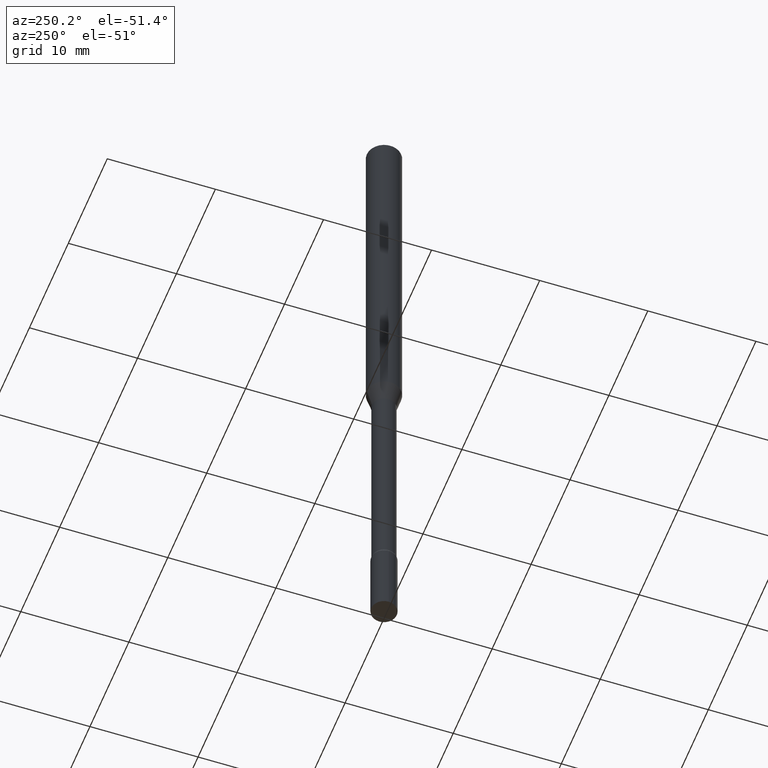
[diagram: clean part render]
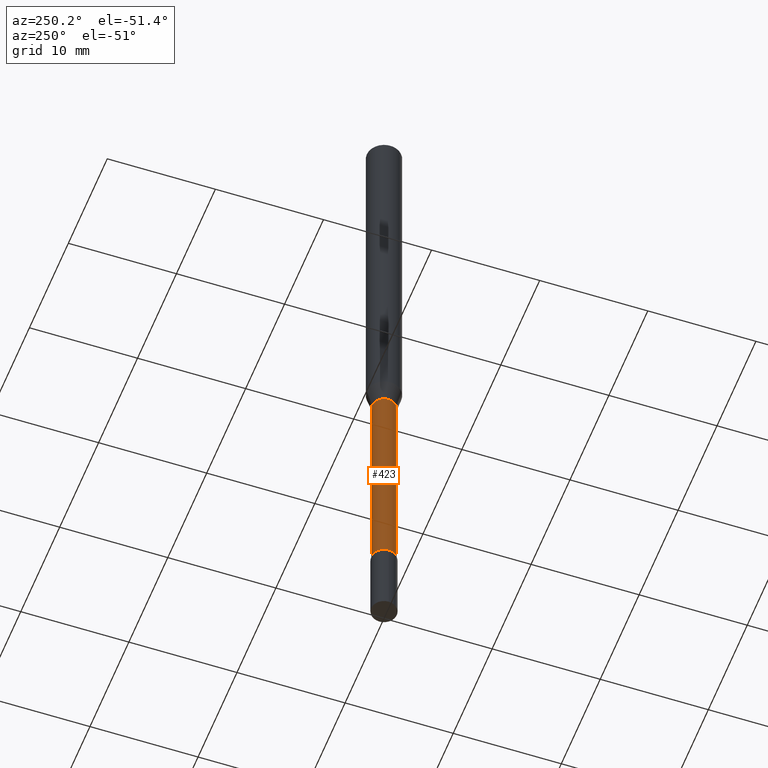
[diagram: same view with one face highlighted and labeled with its STEP entity id]
A machine part, auxiliary view. The second image highlights one B-rep face of the part: STEP entity #423.
In plain terms, the highlighted cylindrical surface (edge-blend (fillet) strip) has radius 1.11 mm, axis along (-0, 0, 1).
Its self-contained STEP definition (entity closure, byte-faithful):
#2 = CIRCLE ( 'NONE', #29, 0.04370000000000000967 ) ;
#29 = AXIS2_PLACEMENT_3D ( 'NONE', #323, #520, #460 ) ;
#31 = FACE_OUTER_BOUND ( 'NONE', #210, .T. ) ;
#38 = CIRCLE ( 'NONE', #483, 0.04370000000000014845 ) ;
#40 = ORIENTED_EDGE ( 'NONE', *, *, #516, .T. ) ;
#46 = CARTESIAN_POINT ( 'NONE',  ( 3.105071755271642937E-16, 0.04370000000000007906, -1.525769678600814865E-16 ) ) ;
#85 = DIRECTION ( 'NONE',  ( -2.445481056688412626E-29, 3.491463795425199032E-15, 1.000000000000000000 ) ) ;
#106 = ORIENTED_EDGE ( 'NONE', *, *, #478, .F. ) ;
#121 = DIRECTION ( 'NONE',  ( -6.982962677686264344E-15, -1.000000000000000000, 6.251368406554356484E-15 ) ) ;
#124 = CARTESIAN_POINT ( 'NONE',  ( 3.105071755272183306E-16, 0.04369999999999516632, -1.385974787463811309 ) ) ;
#146 = VERTEX_POINT ( 'NONE', #124 ) ;
#149 = EDGE_CURVE ( 'NONE', #247, #290, #241, .T. ) ;
#160 = CARTESIAN_POINT ( 'NONE',  ( 3.204547738278597224E-16, 0.04369999999999241852, -2.212273030308292032 ) ) ;
#196 = VECTOR ( 'NONE', #295, 39.37007874015748143 ) ;
#210 = EDGE_LOOP ( 'NONE', ( #374, #40, #244, #106 ) ) ;
#229 = AXIS2_PLACEMENT_3D ( 'NONE', #270, #405, #233 ) ;
#233 = DIRECTION ( 'NONE',  ( -6.982962677686265922E-15, -1.000000000000000000, 3.491463795425199426E-15 ) ) ;
#241 = LINE ( 'NONE', #418, #196 ) ;
#244 = ORIENTED_EDGE ( 'NONE', *, *, #149, .T. ) ;
#247 = VERTEX_POINT ( 'NONE', #375 ) ;
#270 = CARTESIAN_POINT ( 'NONE',  ( 0.000000000000000000, 0.000000000000000000, 0.000000000000000000 ) ) ;
#278 = DIRECTION ( 'NONE',  ( -2.445481056688412626E-29, 3.491463795425199032E-15, 1.000000000000000000 ) ) ;
#290 = VERTEX_POINT ( 'NONE', #484 ) ;
#295 = DIRECTION ( 'NONE',  ( -2.445481056688412626E-29, 3.491463795425199032E-15, 1.000000000000000000 ) ) ;
#323 = CARTESIAN_POINT ( 'NONE',  ( 3.389375087790498782E-29, -4.839080791802031638E-15, -1.385974787463811086 ) ) ;
#325 = CARTESIAN_POINT ( 'NONE',  ( 5.410071787841597970E-29, -7.724071190916995468E-15, -2.212273030308292032 ) ) ;
#340 = LINE ( 'NONE', #46, #495 ) ;
#342 = EDGE_CURVE ( 'NONE', #489, #146, #340, .T. ) ;
#356 = CYLINDRICAL_SURFACE ( 'NONE', #229, 0.04370000000000007906 ) ;
#374 = ORIENTED_EDGE ( 'NONE', *, *, #342, .F. ) ;
#375 = CARTESIAN_POINT ( 'NONE',  ( -3.051554690148367184E-16, -0.04370000000000787144, -2.212273030308291588 ) ) ;
#405 = DIRECTION ( 'NONE',  ( -2.445481056688412626E-29, 3.491463795425199032E-15, 1.000000000000000000 ) ) ;
#418 = CARTESIAN_POINT ( 'NONE',  ( -3.051554690148903609E-16, -0.04370000000000007906, 1.525769678600814865E-16 ) ) ;
#423 = ADVANCED_FACE ( 'NONE', ( #31 ), #356, .T. ) ;
#460 = DIRECTION ( 'NONE',  ( -6.982962677686266711E-15, -1.000000000000000000, 6.251368406554376995E-15 ) ) ;
#478 = EDGE_CURVE ( 'NONE', #146, #290, #2, .T. ) ;
#483 = AXIS2_PLACEMENT_3D ( 'NONE', #325, #278, #121 ) ;
#484 = CARTESIAN_POINT ( 'NONE',  ( -3.051554690148559962E-16, -0.04370000000000485302, -1.385974787463810864 ) ) ;
#489 = VERTEX_POINT ( 'NONE', #160 ) ;
#495 = VECTOR ( 'NONE', #85, 39.37007874015748143 ) ;
#516 = EDGE_CURVE ( 'NONE', #489, #247, #38, .T. ) ;
#520 = DIRECTION ( 'NONE',  ( -2.445481056688412626E-29, 3.491463795425199032E-15, 1.000000000000000000 ) ) ;